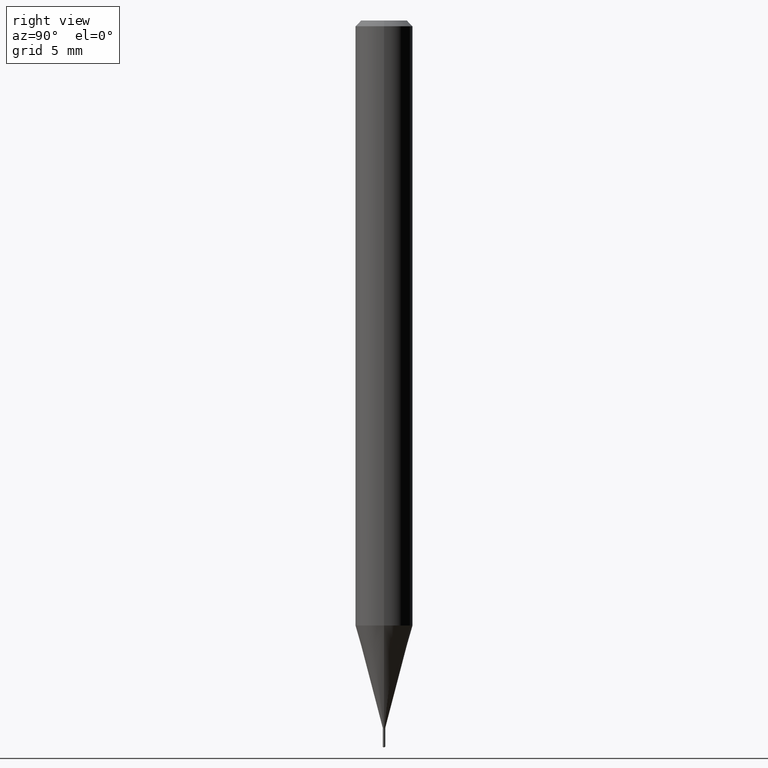
[diagram: clean part render]
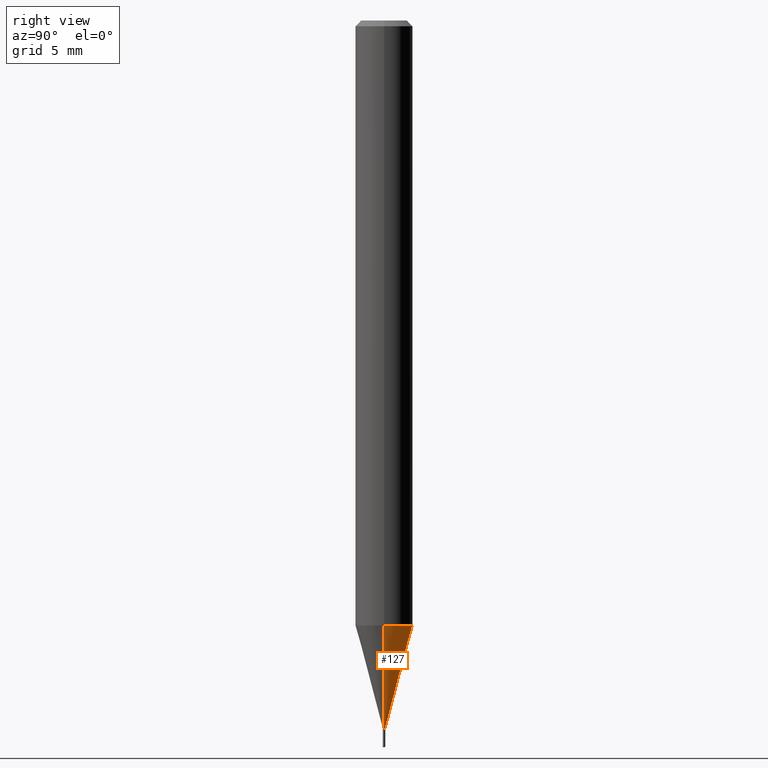
[diagram: same view with one face highlighted and labeled with its STEP entity id]
A machine part, right view. The second image highlights one B-rep face of the part: STEP entity #127.
In plain terms, the highlighted conical surface has half-angle 15 deg.
Its self-contained STEP definition (entity closure, byte-faithful):
#32 = FACE_OUTER_BOUND ( 'NONE', #308, .T. ) ;
#45 = DIRECTION ( 'NONE',  ( 0.2588190451025211836, 1.565188264969622559E-15, 0.9659258262890679791 ) ) ;
#46 = DIRECTION ( 'NONE',  ( 1.000000000000000000, -6.982962677686274599E-15, 0.000000000000000000 ) ) ;
#48 = ORIENTED_EDGE ( 'NONE', *, *, #139, .T. ) ;
#51 = CARTESIAN_POINT ( 'NONE',  ( 0.002550000000000000183, -5.101054236049835376E-15, -1.455899999999999972 ) ) ;
#60 = AXIS2_PLACEMENT_3D ( 'NONE', #116, #398, #46 ) ;
#68 = ORIENTED_EDGE ( 'NONE', *, *, #354, .F. ) ;
#71 = VERTEX_POINT ( 'NONE', #237 ) ;
#76 = CARTESIAN_POINT ( 'NONE',  ( 0.002550000000000000183, -5.101054236049835376E-15, -1.455899999999999972 ) ) ;
#100 = CARTESIAN_POINT ( 'NONE',  ( 0.05905000000000015098, -4.759374832450481016E-15, -1.245039129372358166 ) ) ;
#105 = CARTESIAN_POINT ( 'NONE',  ( 3.560358034924940320E-29, -5.083247681221735251E-15, -1.455899999999999972 ) ) ;
#116 = CARTESIAN_POINT ( 'NONE',  ( 3.560358034924940320E-29, -5.083247681221735251E-15, -1.455899999999999972 ) ) ;
#127 = ADVANCED_FACE ( 'NONE', ( #32 ), #435, .T. ) ;
#139 = EDGE_CURVE ( 'NONE', #269, #190, #179, .T. ) ;
#151 = VERTEX_POINT ( 'NONE', #100 ) ;
#152 = EDGE_CURVE ( 'NONE', #151, #71, #192, .T. ) ;
#153 = DIRECTION ( 'NONE',  ( 1.000000000000000000, -6.982962677686274599E-15, 0.000000000000000000 ) ) ;
#158 = CARTESIAN_POINT ( 'NONE',  ( -0.002550000000000000183, -5.065652563660679960E-15, -1.455899999999999972 ) ) ;
#168 = CARTESIAN_POINT ( 'NONE',  ( -0.002550000000000000183, -5.065128841459853114E-15, -1.455899999999999972 ) ) ;
#174 = LINE ( 'NONE', #168, #318 ) ;
#179 = CIRCLE ( 'NONE', #60, 0.002550000000000000183 ) ;
#184 = DIRECTION ( 'NONE',  ( 1.000000000000000000, -6.982962677686271444E-15, 0.000000000000000000 ) ) ;
#189 = DIRECTION ( 'NONE',  ( -2.445468806185136597E-29, 3.491481338843145583E-15, 1.000000000000000000 ) ) ;
#190 = VERTEX_POINT ( 'NONE', #158 ) ;
#192 = CIRCLE ( 'NONE', #221, 0.05905000000000015098 ) ;
#200 = ORIENTED_EDGE ( 'NONE', *, *, #225, .T. ) ;
#214 = DIRECTION ( 'NONE',  ( -0.2588190451025211836, 5.211531920934547886E-15, 0.9659258262890679791 ) ) ;
#221 = AXIS2_PLACEMENT_3D ( 'NONE', #440, #189, #184 ) ;
#225 = EDGE_CURVE ( 'NONE', #190, #71, #174, .T. ) ;
#237 = CARTESIAN_POINT ( 'NONE',  ( -0.05905000000000015098, -3.927455400866765814E-15, -1.245039129372358166 ) ) ;
#269 = VERTEX_POINT ( 'NONE', #76 ) ;
#308 = EDGE_LOOP ( 'NONE', ( #48, #200, #409, #68 ) ) ;
#318 = VECTOR ( 'NONE', #214, 39.37007874015748854 ) ;
#354 = EDGE_CURVE ( 'NONE', #269, #151, #432, .T. ) ;
#357 = VECTOR ( 'NONE', #45, 39.37007874015748854 ) ;
#398 = DIRECTION ( 'NONE',  ( -2.445468806185136597E-29, 3.491481338843145583E-15, 1.000000000000000000 ) ) ;
#406 = AXIS2_PLACEMENT_3D ( 'NONE', #105, #485, #153 ) ;
#409 = ORIENTED_EDGE ( 'NONE', *, *, #152, .F. ) ;
#432 = LINE ( 'NONE', #51, #357 ) ;
#435 = CONICAL_SURFACE ( 'NONE', #406, 0.002550000000000000183, 0.2617993877991499074 ) ;
#440 = CARTESIAN_POINT ( 'NONE',  ( 3.044704353360002545E-29, -4.347030886333105307E-15, -1.245039129372358166 ) ) ;
#485 = DIRECTION ( 'NONE',  ( -2.445468806185136597E-29, 3.491481338843145583E-15, 1.000000000000000000 ) ) ;